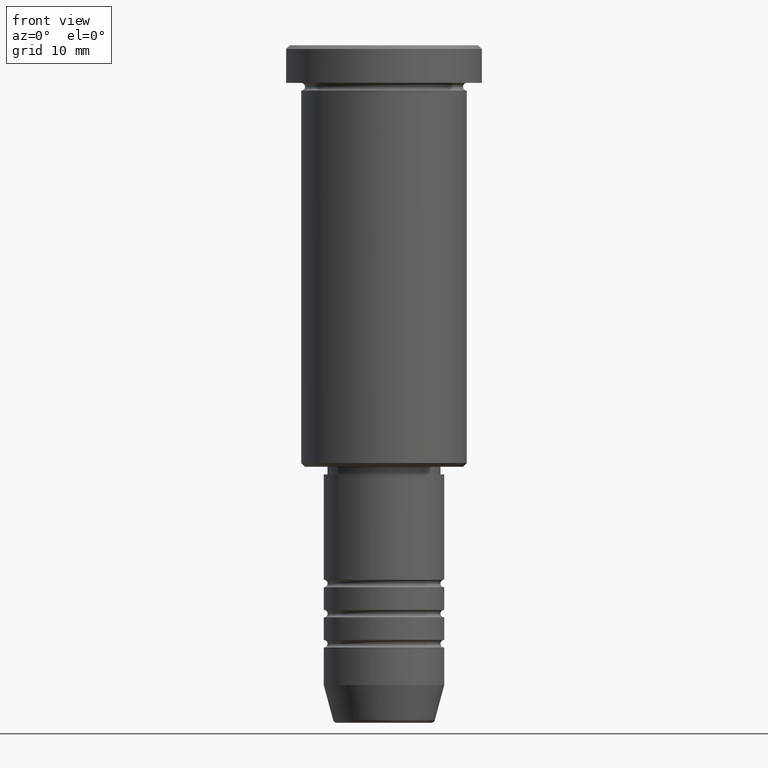
[diagram: clean part render]
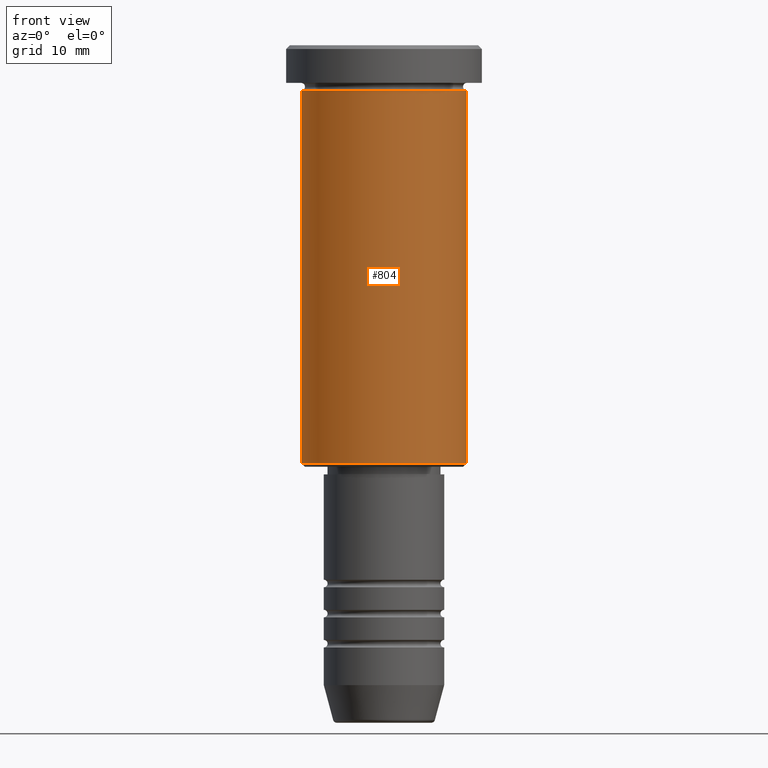
[diagram: same view with one face highlighted and labeled with its STEP entity id]
A machine part, front view. The second image highlights one B-rep face of the part: STEP entity #804.
In plain terms, the highlighted cylindrical surface (partial cylindrical patch) has radius 11 mm, axis along (-0, -0, 1).
Its self-contained STEP definition (entity closure, byte-faithful):
#18 = VECTOR ( 'NONE', #118, 1000.000000000000000 ) ;
#48 = CARTESIAN_POINT ( 'NONE',  ( 11.00000000000000000, 0.000000000000000000, -55.50000000000000000 ) ) ;
#117 = VERTEX_POINT ( 'NONE', #332 ) ;
#118 = DIRECTION ( 'NONE',  ( -0.000000000000000000, -0.000000000000000000, 1.000000000000000000 ) ) ;
#122 = CARTESIAN_POINT ( 'NONE',  ( -11.00000000000000000, 1.347111479062088405E-15, -55.50000000000000000 ) ) ;
#135 = LINE ( 'NONE', #415, #916 ) ;
#155 = DIRECTION ( 'NONE',  ( -0.000000000000000000, -0.000000000000000000, 1.000000000000000000 ) ) ;
#201 = CARTESIAN_POINT ( 'NONE',  ( 11.00000000000000000, 0.000000000000000000, -5.999999999999999112 ) ) ;
#204 = ORIENTED_EDGE ( 'NONE', *, *, #724, .T. ) ;
#241 = DIRECTION ( 'NONE',  ( -0.000000000000000000, -0.000000000000000000, 1.000000000000000000 ) ) ;
#243 = CARTESIAN_POINT ( 'NONE',  ( 0.000000000000000000, 0.000000000000000000, -5.999999999999999112 ) ) ;
#310 = EDGE_CURVE ( 'NONE', #883, #1171, #375, .T. ) ;
#318 = DIRECTION ( 'NONE',  ( 1.000000000000000000, 0.000000000000000000, 0.000000000000000000 ) ) ;
#332 = CARTESIAN_POINT ( 'NONE',  ( -11.00000000000000000, 1.347111479062088405E-15, -5.999999999999999112 ) ) ;
#375 = LINE ( 'NONE', #939, #18 ) ;
#402 = EDGE_CURVE ( 'NONE', #117, #1171, #694, .T. ) ;
#413 = ORIENTED_EDGE ( 'NONE', *, *, #851, .F. ) ;
#415 = CARTESIAN_POINT ( 'NONE',  ( -11.00000000000000000, 1.347111479062088405E-15, 0.000000000000000000 ) ) ;
#465 = AXIS2_PLACEMENT_3D ( 'NONE', #778, #241, #499 ) ;
#471 = DIRECTION ( 'NONE',  ( -0.000000000000000000, -0.000000000000000000, 1.000000000000000000 ) ) ;
#474 = ORIENTED_EDGE ( 'NONE', *, *, #402, .F. ) ;
#492 = CARTESIAN_POINT ( 'NONE',  ( 0.000000000000000000, 0.000000000000000000, -55.50000000000000000 ) ) ;
#499 = DIRECTION ( 'NONE',  ( 1.000000000000000000, 0.000000000000000000, 0.000000000000000000 ) ) ;
#570 = DIRECTION ( 'NONE',  ( -1.000000000000000000, 0.000000000000000000, 0.000000000000000000 ) ) ;
#636 = AXIS2_PLACEMENT_3D ( 'NONE', #492, #471, #570 ) ;
#685 = CYLINDRICAL_SURFACE ( 'NONE', #465, 11.00000000000000000 ) ;
#694 = CIRCLE ( 'NONE', #1070, 11.00000000000000000 ) ;
#724 = EDGE_CURVE ( 'NONE', #740, #883, #1090, .T. ) ;
#740 = VERTEX_POINT ( 'NONE', #122 ) ;
#778 = CARTESIAN_POINT ( 'NONE',  ( 0.000000000000000000, 0.000000000000000000, 0.000000000000000000 ) ) ;
#804 = ADVANCED_FACE ( 'NONE', ( #1061 ), #685, .T. ) ;
#851 = EDGE_CURVE ( 'NONE', #740, #117, #135, .T. ) ;
#857 = ORIENTED_EDGE ( 'NONE', *, *, #310, .T. ) ;
#883 = VERTEX_POINT ( 'NONE', #48 ) ;
#916 = VECTOR ( 'NONE', #1129, 1000.000000000000000 ) ;
#939 = CARTESIAN_POINT ( 'NONE',  ( 11.00000000000000000, 0.000000000000000000, 0.000000000000000000 ) ) ;
#1061 = FACE_OUTER_BOUND ( 'NONE', #1089, .T. ) ;
#1070 = AXIS2_PLACEMENT_3D ( 'NONE', #243, #155, #318 ) ;
#1089 = EDGE_LOOP ( 'NONE', ( #413, #204, #857, #474 ) ) ;
#1090 = CIRCLE ( 'NONE', #636, 11.00000000000000000 ) ;
#1129 = DIRECTION ( 'NONE',  ( -0.000000000000000000, -0.000000000000000000, 1.000000000000000000 ) ) ;
#1171 = VERTEX_POINT ( 'NONE', #201 ) ;